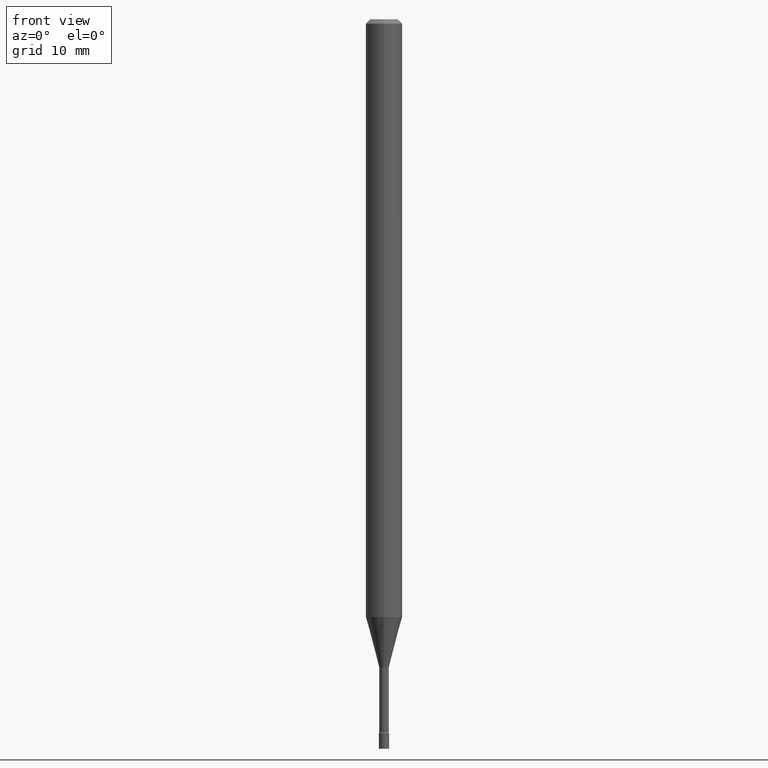
[diagram: clean part render]
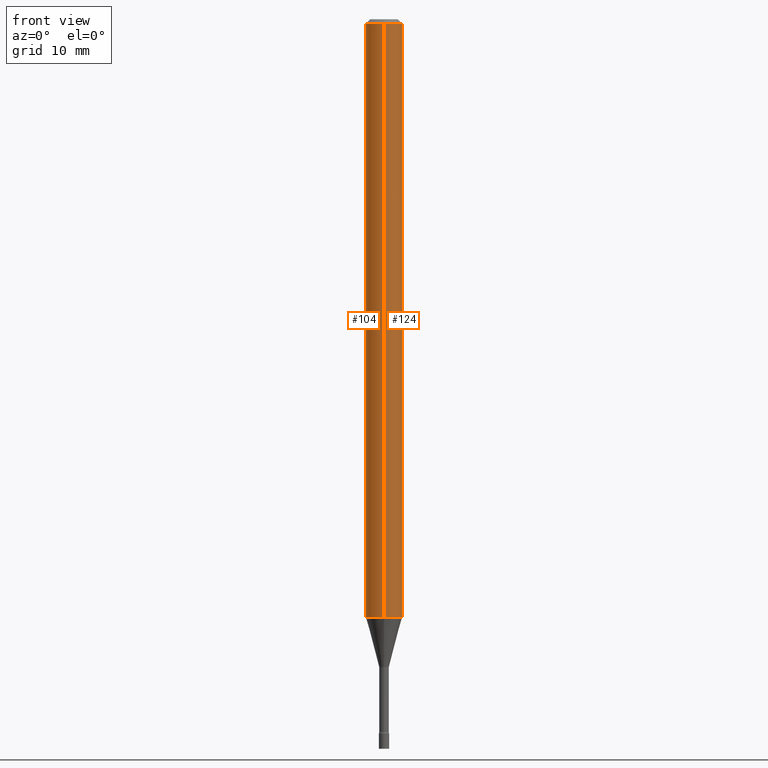
[diagram: same view with one multi-face feature highlighted, each face labeled with its STEP entity id]
A machine part, front view. The highlighted faces form ONE feature: a constant-radius fillet chain: 2 tangent blend faces with common blend radius 1.5875 mm. The faces share edges in the B-rep.
Their STEP definitions:
[1] entity #124 (Cylinder):
#17 = DIRECTION ( 'NONE',  ( -2.445474882117663178E-29, 3.491472637761947408E-15, 1.000000000000000000 ) ) ;
#30 = DIRECTION ( 'NONE',  ( -2.445474882117663178E-29, 3.491472637761947014E-15, 1.000000000000000000 ) ) ;
#32 = DIRECTION ( 'NONE',  ( -2.445474882117663178E-29, 3.491472637761947408E-15, 1.000000000000000000 ) ) ;
#33 = VERTEX_POINT ( 'NONE', #231 ) ;
#44 = CIRCLE ( 'NONE', #244, 0.06250000000000000000 ) ;
#63 = AXIS2_PLACEMENT_3D ( 'NONE', #388, #30, #512 ) ;
#66 = ORIENTED_EDGE ( 'NONE', *, *, #360, .F. ) ;
#75 = FACE_OUTER_BOUND ( 'NONE', #467, .T. ) ;
#81 = VERTEX_POINT ( 'NONE', #319 ) ;
#82 = EDGE_CURVE ( 'NONE', #33, #81, #118, .T. ) ;
#89 = ORIENTED_EDGE ( 'NONE', *, *, #82, .T. ) ;
#105 = CARTESIAN_POINT ( 'NONE',  ( 5.008672627075734005E-29, -7.151021487408906402E-15, -2.048139060311453541 ) ) ;
#114 = ORIENTED_EDGE ( 'NONE', *, *, #292, .F. ) ;
#118 = LINE ( 'NONE', #471, #503 ) ;
#124 = ADVANCED_FACE ( 'NONE', ( #75 ), #236, .T. ) ;
#179 = VECTOR ( 'NONE', #17, 39.37007874015748143 ) ;
#189 = VERTEX_POINT ( 'NONE', #367 ) ;
#193 = DIRECTION ( 'NONE',  ( -2.445474882117663178E-29, 3.491472637761947014E-15, 1.000000000000000000 ) ) ;
#231 = CARTESIAN_POINT ( 'NONE',  ( 4.440892098501126102E-16, 0.06249999999999283906, -2.048139060311453985 ) ) ;
#236 = CYLINDRICAL_SURFACE ( 'NONE', #63, 0.06250000000000000000 ) ;
#244 = AXIS2_PLACEMENT_3D ( 'NONE', #105, #267, #374 ) ;
#255 = AXIS2_PLACEMENT_3D ( 'NONE', #500, #193, #348 ) ;
#267 = DIRECTION ( 'NONE',  ( -2.445474882117663178E-29, 3.491472637761947014E-15, 1.000000000000000000 ) ) ;
#292 = EDGE_CURVE ( 'NONE', #189, #361, #327, .T. ) ;
#319 = CARTESIAN_POINT ( 'NONE',  ( 4.440892098501130047E-16, 0.06249999999999995143, -0.01500000000000024751 ) ) ;
#327 = LINE ( 'NONE', #373, #179 ) ;
#348 = DIRECTION ( 'NONE',  ( -6.982962677686265922E-15, -1.000000000000000000, 3.483106191921935554E-15 ) ) ;
#360 = EDGE_CURVE ( 'NONE', #361, #81, #476, .T. ) ;
#361 = VERTEX_POINT ( 'NONE', #505 ) ;
#367 = CARTESIAN_POINT ( 'NONE',  ( -4.364351673553417740E-16, -0.06250000000000717482, -2.048139060311453541 ) ) ;
#373 = CARTESIAN_POINT ( 'NONE',  ( -4.364351673553916201E-16, -0.06250000000000000000, 2.182170398601216884E-16 ) ) ;
#374 = DIRECTION ( 'NONE',  ( -6.982962677686265922E-15, -1.000000000000000000, 4.370956789862821150E-15 ) ) ;
#388 = CARTESIAN_POINT ( 'NONE',  ( 0.000000000000000000, 0.000000000000000000, 0.000000000000000000 ) ) ;
#467 = EDGE_LOOP ( 'NONE', ( #478, #89, #66, #114 ) ) ;
#471 = CARTESIAN_POINT ( 'NONE',  ( 4.440892098500625669E-16, 0.06250000000000000000, -2.182170398601216884E-16 ) ) ;
#476 = CIRCLE ( 'NONE', #255, 0.06250000000000000000 ) ;
#478 = ORIENTED_EDGE ( 'NONE', *, *, #518, .T. ) ;
#500 = CARTESIAN_POINT ( 'NONE',  ( 3.668212323176501949E-31, -5.237208956642930826E-17, -0.01500000000000003067 ) ) ;
#503 = VECTOR ( 'NONE', #32, 39.37007874015748143 ) ;
#505 = CARTESIAN_POINT ( 'NONE',  ( -4.364351673553912750E-16, -0.06250000000000005551, -0.01499999999999981209 ) ) ;
#512 = DIRECTION ( 'NONE',  ( -6.982962677686265922E-15, -1.000000000000000000, 3.491472637761947014E-15 ) ) ;
#518 = EDGE_CURVE ( 'NONE', #189, #33, #44, .T. ) ;
[2] entity #104 (Cylinder):
#17 = DIRECTION ( 'NONE',  ( -2.445474882117663178E-29, 3.491472637761947408E-15, 1.000000000000000000 ) ) ;
#29 = CARTESIAN_POINT ( 'NONE',  ( 0.000000000000000000, 0.000000000000000000, 0.000000000000000000 ) ) ;
#32 = DIRECTION ( 'NONE',  ( -2.445474882117663178E-29, 3.491472637761947408E-15, 1.000000000000000000 ) ) ;
#33 = VERTEX_POINT ( 'NONE', #231 ) ;
#59 = DIRECTION ( 'NONE',  ( -2.445474882117663178E-29, 3.491472637761947014E-15, 1.000000000000000000 ) ) ;
#81 = VERTEX_POINT ( 'NONE', #319 ) ;
#82 = EDGE_CURVE ( 'NONE', #33, #81, #118, .T. ) ;
#98 = ORIENTED_EDGE ( 'NONE', *, *, #292, .T. ) ;
#104 = ADVANCED_FACE ( 'NONE', ( #351 ), #195, .T. ) ;
#108 = DIRECTION ( 'NONE',  ( -6.982962677686265922E-15, -1.000000000000000000, 3.483106191921935554E-15 ) ) ;
#118 = LINE ( 'NONE', #471, #503 ) ;
#129 = ORIENTED_EDGE ( 'NONE', *, *, #82, .F. ) ;
#136 = AXIS2_PLACEMENT_3D ( 'NONE', #456, #59, #108 ) ;
#150 = DIRECTION ( 'NONE',  ( -2.445474882117663178E-29, 3.491472637761947014E-15, 1.000000000000000000 ) ) ;
#151 = DIRECTION ( 'NONE',  ( -6.982962677686265922E-15, -1.000000000000000000, 4.370956789862821150E-15 ) ) ;
#163 = CIRCLE ( 'NONE', #136, 0.06250000000000000000 ) ;
#179 = VECTOR ( 'NONE', #17, 39.37007874015748143 ) ;
#189 = VERTEX_POINT ( 'NONE', #367 ) ;
#195 = CYLINDRICAL_SURFACE ( 'NONE', #248, 0.06250000000000000000 ) ;
#231 = CARTESIAN_POINT ( 'NONE',  ( 4.440892098501126102E-16, 0.06249999999999283906, -2.048139060311453985 ) ) ;
#247 = ORIENTED_EDGE ( 'NONE', *, *, #391, .F. ) ;
#248 = AXIS2_PLACEMENT_3D ( 'NONE', #29, #150, #272 ) ;
#263 = CARTESIAN_POINT ( 'NONE',  ( 5.008672627075734005E-29, -7.151021487408906402E-15, -2.048139060311453541 ) ) ;
#272 = DIRECTION ( 'NONE',  ( -6.982962677686265922E-15, -1.000000000000000000, 3.491472637761947014E-15 ) ) ;
#292 = EDGE_CURVE ( 'NONE', #189, #361, #327, .T. ) ;
#319 = CARTESIAN_POINT ( 'NONE',  ( 4.440892098501130047E-16, 0.06249999999999995143, -0.01500000000000024751 ) ) ;
#327 = LINE ( 'NONE', #373, #179 ) ;
#342 = DIRECTION ( 'NONE',  ( -2.445474882117663178E-29, 3.491472637761947014E-15, 1.000000000000000000 ) ) ;
#351 = FACE_OUTER_BOUND ( 'NONE', #457, .T. ) ;
#355 = AXIS2_PLACEMENT_3D ( 'NONE', #263, #342, #151 ) ;
#361 = VERTEX_POINT ( 'NONE', #505 ) ;
#367 = CARTESIAN_POINT ( 'NONE',  ( -4.364351673553417740E-16, -0.06250000000000717482, -2.048139060311453541 ) ) ;
#373 = CARTESIAN_POINT ( 'NONE',  ( -4.364351673553916201E-16, -0.06250000000000000000, 2.182170398601216884E-16 ) ) ;
#391 = EDGE_CURVE ( 'NONE', #81, #361, #163, .T. ) ;
#456 = CARTESIAN_POINT ( 'NONE',  ( 3.668212323176501949E-31, -5.237208956642930826E-17, -0.01500000000000003067 ) ) ;
#457 = EDGE_LOOP ( 'NONE', ( #129, #496, #98, #247 ) ) ;
#471 = CARTESIAN_POINT ( 'NONE',  ( 4.440892098500625669E-16, 0.06250000000000000000, -2.182170398601216884E-16 ) ) ;
#475 = EDGE_CURVE ( 'NONE', #33, #189, #477, .T. ) ;
#477 = CIRCLE ( 'NONE', #355, 0.06250000000000000000 ) ;
#496 = ORIENTED_EDGE ( 'NONE', *, *, #475, .T. ) ;
#503 = VECTOR ( 'NONE', #32, 39.37007874015748143 ) ;
#505 = CARTESIAN_POINT ( 'NONE',  ( -4.364351673553912750E-16, -0.06250000000000005551, -0.01499999999999981209 ) ) ;